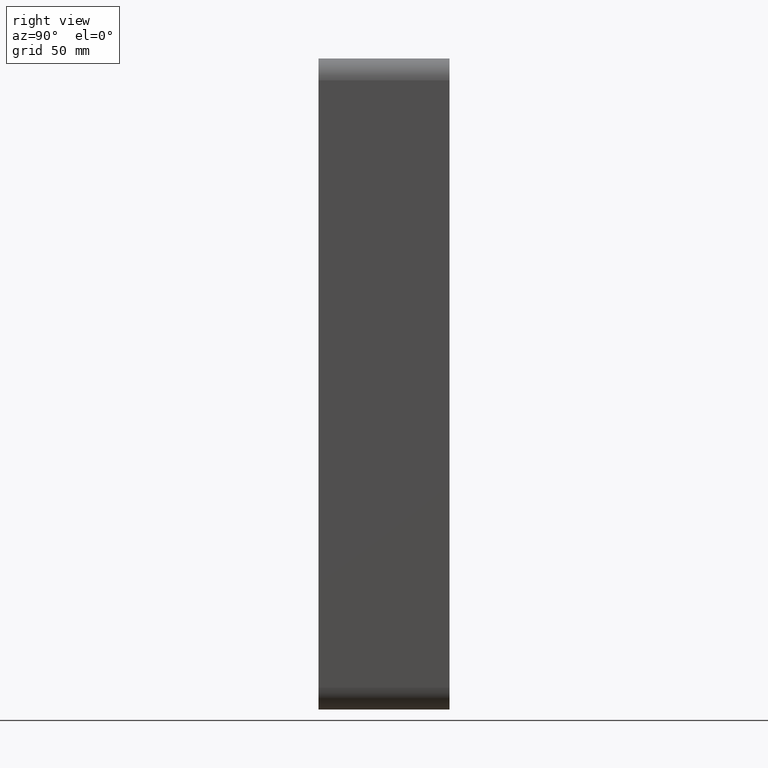
[diagram: clean part render]
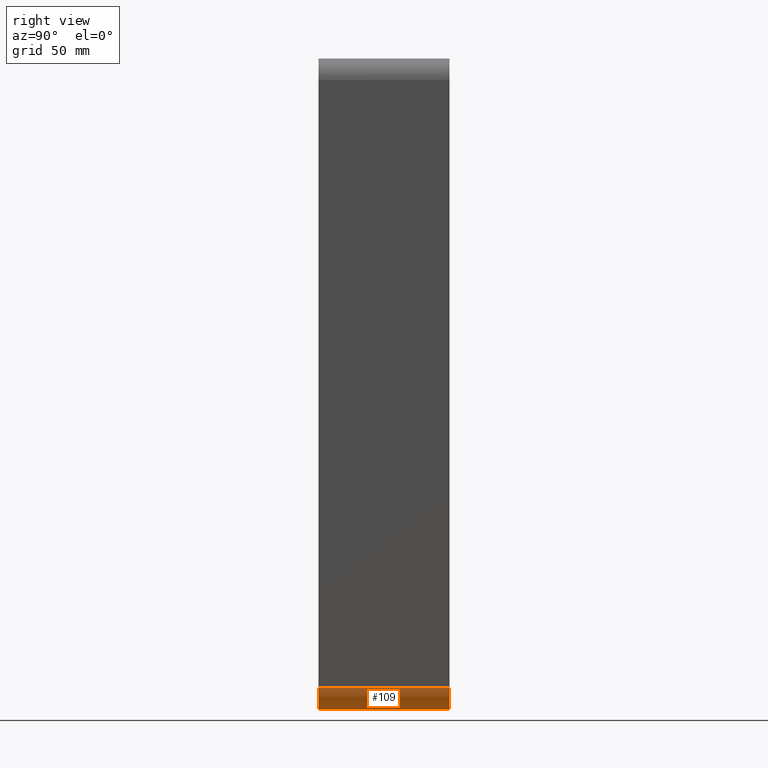
[diagram: same view with one face highlighted and labeled with its STEP entity id]
A machine part, right view. The second image highlights one B-rep face of the part: STEP entity #109.
In plain terms, the highlighted cylindrical surface (edge-blend (fillet) strip) has radius 10 mm, axis along (0, 1, 0).
Its self-contained STEP definition (entity closure, byte-faithful):
#68=CARTESIAN_POINT('',(60.25,0.0,-139.00000000000003));
#69=DIRECTION('',(0.0,1.0,0.0));
#70=DIRECTION('',(0.707106781186547,0.0,-0.707106781186547));
#71=AXIS2_PLACEMENT_3D('',#68,#69,#70);
#72=CYLINDRICAL_SURFACE('',#71,10.0);
#73=CARTESIAN_POINT('',(60.25,57.0,-149.00000000000003));
#74=VERTEX_POINT('',#73);
#75=CARTESIAN_POINT('',(70.25,57.0,-139.00000000000003));
#76=VERTEX_POINT('',#75);
#77=CARTESIAN_POINT('',(60.25,57.0,-139.00000000000003));
#78=DIRECTION('',(0.0,-1.0,0.0));
#79=DIRECTION('',(0.707106781186547,0.0,-0.707106781186547));
#80=AXIS2_PLACEMENT_3D('',#77,#78,#79);
#81=CIRCLE('',#80,9.999999999999998);
#82=EDGE_CURVE('',#74,#76,#81,.T.);
#83=ORIENTED_EDGE('',*,*,#82,.T.);
#84=CARTESIAN_POINT('',(70.25,-3.0,-139.00000000000003));
#85=VERTEX_POINT('',#84);
#86=CARTESIAN_POINT('',(70.25,57.0,-139.00000000000003));
#87=DIRECTION('',(0.0,-1.0,0.0));
#88=VECTOR('',#87,60.0);
#89=LINE('',#86,#88);
#90=EDGE_CURVE('',#76,#85,#89,.T.);
#91=ORIENTED_EDGE('',*,*,#90,.T.);
#92=CARTESIAN_POINT('',(60.25,-3.0,-149.00000000000003));
#93=VERTEX_POINT('',#92);
#94=CARTESIAN_POINT('',(60.25,-3.0,-139.00000000000003));
#95=DIRECTION('',(0.0,1.0,0.0));
#96=DIRECTION('',(0.707106781186547,0.0,-0.707106781186547));
#97=AXIS2_PLACEMENT_3D('',#94,#95,#96);
#98=CIRCLE('',#97,9.999999999999998);
#99=EDGE_CURVE('',#85,#93,#98,.T.);
#100=ORIENTED_EDGE('',*,*,#99,.T.);
#101=CARTESIAN_POINT('',(60.25,-3.0,-149.00000000000003));
#102=DIRECTION('',(0.0,1.0,0.0));
#103=VECTOR('',#102,60.0);
#104=LINE('',#101,#103);
#105=EDGE_CURVE('',#93,#74,#104,.T.);
#106=ORIENTED_EDGE('',*,*,#105,.T.);
#107=EDGE_LOOP('',(#83,#91,#100,#106));
#108=FACE_OUTER_BOUND('',#107,.T.);
#109=ADVANCED_FACE('',(#108),#72,.T.);